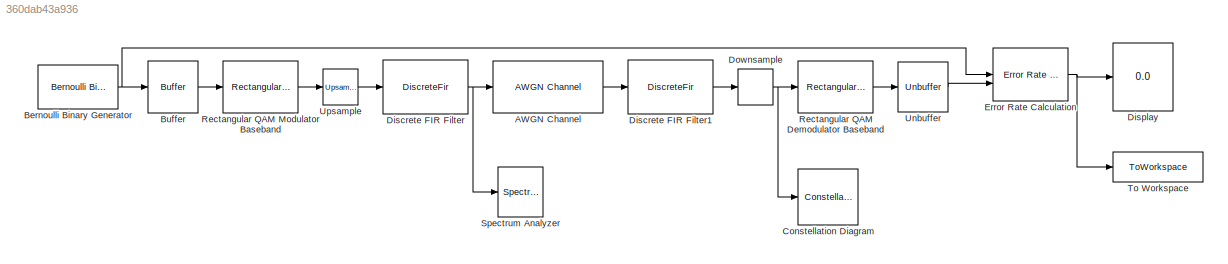
MODEL slx_360dab43a936
KIND model
CONFIG AbsTol = auto
CONFIG EnableMultiTasking = off
CONFIG FixedStep = auto
CONFIG MaxStep = auto
CONFIG MinStep = auto
CONFIG RelTol = 1e-3
CONFIG SampleTimeConstraint = Unconstrained
CONFIG SolverName = FixedStepDiscrete
CONFIG StartTime = 0.0
CONFIG StopTime = inf
BLOCK [Reference] AWGN Channel  REF=commchan3/AWGN
Channel
  SourceBlock = commchan3/AWGN\nChannel
  SourceType = AWGN Channel
BLOCK [Reference] Bernoulli Binary Generator  REF=commrandsrc3/Bernoulli Binary
Generator
  SourceBlock = commrandsrc3/Bernoulli Binary\nGenerator
  SourceType = Bernoulli Binary Generator
BLOCK [Buffer] Buffer
  N = 6
  OutputFrames = off
BLOCK [ConstellationDiagram] Constellation Diagram
  Commented = on
  GraphicalSettings = {"Style":{"BackgroundColor":[0.12941176470588237,0.12941176470588237,0.12941176470588237],"AxesColor":[0.070588235294117646,0.070588235294117646,0.070588235294117646],"LabelsColor":[0.85098039215686272,0.85098039215686272,0.85098039215686272],"PreserveColors":false,"LineStyle":["NONE"],"LineWidth":1,"LineColor":[1,0,0],"Marker":["none"],"FontSize":8.5,"IsRefLine":true},"MeasurementChannel":0,"Refe...<+202ch>
  ReferenceConstellation = QPSK
  SamplesPerSymbol = 4
  ScopeFrameLocation = window
  ShowReferenceConstellation = off
  SymbolsToDisplay = 400
  SymbolsToDisplaySource = Property
  Visible = on
  WasSavedAsWebScope = on
  WindowPosition = [724.000000,230.000000,600.000000,596.000000,]
BLOCK [DiscreteFir] Discrete FIR Filter
  Coefficients = rcosdesign(1, 6, 16, 'sqrt')*4
  InputPortMap = u0
  InputProcessing = Columns as channels (frame based)
  OutputPortMap = o0
BLOCK [DiscreteFir] Discrete FIR Filter1
  Coefficients = rcosdesign(1, 6, 16, 'sqrt')/4
  InputPortMap = u0
  InputProcessing = Columns as channels (frame based)
  OutputPortMap = o0
BLOCK [Display] Display
  Decimation = 1
BLOCK [DownSample] Downsample
  AllowArbitraryFixedInput = on
  N = 16
  RateOptions = Allow multirate processing
BLOCK [Reference] Error Rate Calculation  REF=commsink2/Error Rate
Calculation
  SourceBlock = commsink2/Error Rate\nCalculation
  SourceType = Error Rate Calculation
BLOCK [Reference] Rectangular QAM Demodulator Baseband  REF=commdigbbndam3/Rectangular QAM
Demodulator
Baseband
  SourceBlock = commdigbbndam3/Rectangular QAM\nDemodulator\nBaseband
  SourceType = Rectangular QAM Demodulator Baseband
BLOCK [Reference] Rectangular QAM Modulator Baseband  REF=commdigbbndam3/Rectangular QAM
Modulator
Baseband
  SourceBlock = commdigbbndam3/Rectangular QAM\nModulator\nBaseband
  SourceType = Rectangular QAM Modulator Baseband
BLOCK [SpectrumAnalyzer] Spectrum Analyzer
  Commented = on
  ExpandToolstrip = on
  GraphicalSettings = {"GraphicalSettings":{"MeasurementChannel":0,"Channel":{"Type":"occupied-bandwidth","FrequencySpan":"span-and-center-frequency","Span":2000,"CenterFrequency":0,"StartFrequency":-1000,"StopFrequency":1000,"PercentOccupiedBW":99,"NumOffsets":2,"AdjacentBW":1000,"FilterShape":"none","FilterCoeff":0.5,"ACPROffsets":[2000,3500],"Enabled":false},"Style":{"BackgroundColor":[0.12941176470588237,0.12941176...<+402ch>
  ScopeFrameLocation = window
  Span = 2.6666666666666665
  StartFrequency = -1.3333333333333333
  StopFrequency = 1.3333333333333333
  WasSavedAsWebScope = on
  WindowPosition = [808.000000,377.000000,800.000000,500.000000,]
  YLimits = [-59.4194 20.7182]
BLOCK [ToWorkspace] To Workspace
  FixptAsFi = on
  MaxDataPoints = 1
  SampleTime = -1
  VariableName = Errors
BLOCK [Unbuffer] Unbuffer
BLOCK [Reference] Upsample  REF=dspsigops/Upsample
  SourceBlock = dspsigops/Upsample
  SourceType = Upsample
  UserDataPersistent = on
LINE AWGN Channel:1 -> Discrete FIR Filter1:1
NET Bernoulli Binary Generator:1 -> Buffer:1, Error Rate Calculation:1
LINE Buffer:1 -> Rectangular QAM Modulator Baseband:1
LINE Discrete FIR Filter1:1 -> Downsample:1
NET Discrete FIR Filter:1 -> AWGN Channel:1, Spectrum Analyzer:1
NET Downsample:1 -> Constellation Diagram:1, Rectangular QAM Demodulator Baseband:1
NET Error Rate Calculation:1 -> Display:1, To Workspace:1
LINE Rectangular QAM Demodulator Baseband:1 -> Unbuffer:1
LINE Rectangular QAM Modulator Baseband:1 -> Upsample:1
LINE Unbuffer:1 -> Error Rate Calculation:2
LINE Upsample:1 -> Discrete FIR Filter:1
note: NET lines group one-source signal fan-out (src -> all destinations, sorted); 1:1 wires keep LINE
